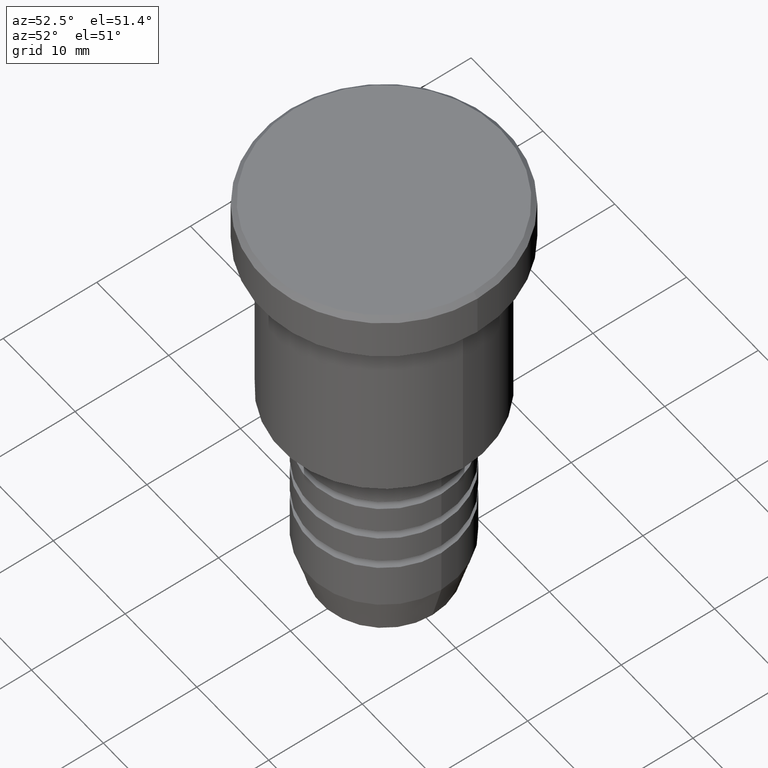
[diagram: clean part render]
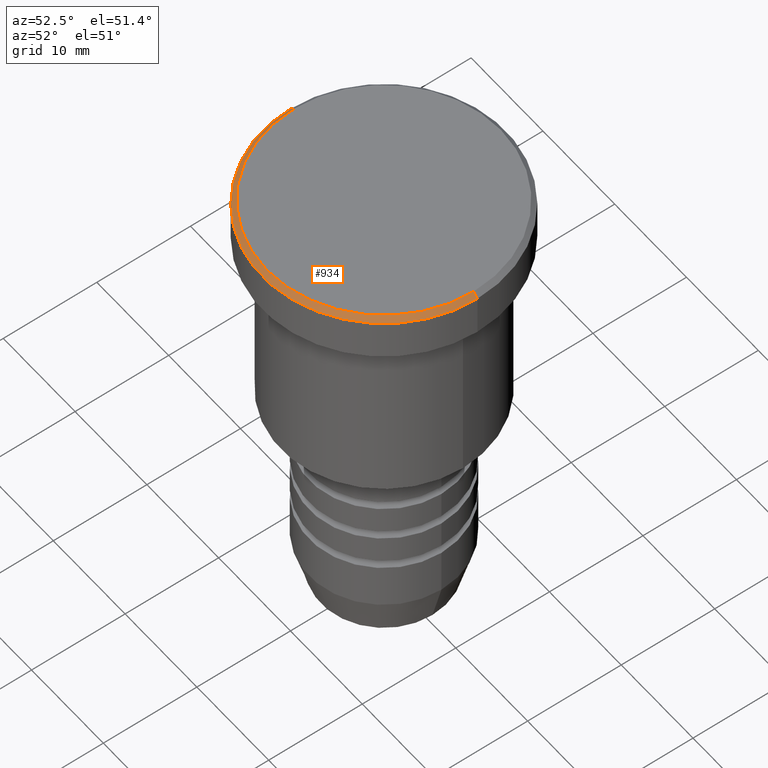
[diagram: same view with one face highlighted and labeled with its STEP entity id]
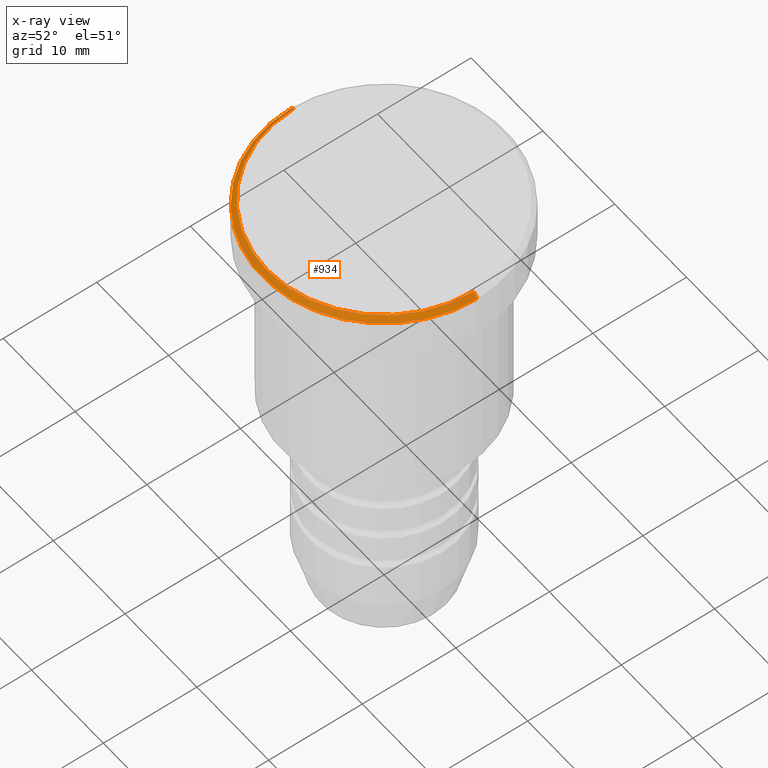
[diagram: x-ray of the same camera — body ghosted, the highlighted face saturated]
A machine part, auxiliary view. The second image highlights one B-rep face of the part: STEP entity #934.
The next image is the same camera in x-ray: the body ghosted, the highlighted face saturated — about 0% of this face is hidden behind the body in this view.
In plain terms, the highlighted conical surface has half-angle 45 deg.
Its self-contained STEP definition (entity closure, byte-faithful):
#182 = DIRECTION ( 'NONE',  ( 1.000000000000000000, 0.000000000000000000, 0.000000000000000000 ) ) ;
#217 = VERTEX_POINT ( 'NONE', #517 ) ;
#220 = DIRECTION ( 'NONE',  ( -0.7071067811865439090, 0.000000000000000000, -0.7071067811865512365 ) ) ;
#253 = DIRECTION ( 'NONE',  ( 0.000000000000000000, 0.000000000000000000, -1.000000000000000000 ) ) ;
#305 = ORIENTED_EDGE ( 'NONE', *, *, #820, .F. ) ;
#328 = CIRCLE ( 'NONE', #468, 13.00000000000000000 ) ;
#420 = CARTESIAN_POINT ( 'NONE',  ( 0.000000000000000000, 0.000000000000000000, 0.000000000000000000 ) ) ;
#422 = CARTESIAN_POINT ( 'NONE',  ( -12.50000000000000355, 0.000000000000000000, 0.000000000000000000 ) ) ;
#458 = ORIENTED_EDGE ( 'NONE', *, *, #951, .F. ) ;
#468 = AXIS2_PLACEMENT_3D ( 'NONE', #794, #253, #182 ) ;
#469 = CARTESIAN_POINT ( 'NONE',  ( 12.50000000000000355, 1.530808498934191916E-15, 0.000000000000000000 ) ) ;
#473 = DIRECTION ( 'NONE',  ( 0.7071067811865439090, 8.659560562354888485E-17, -0.7071067811865512365 ) ) ;
#493 = LINE ( 'NONE', #422, #808 ) ;
#505 = ORIENTED_EDGE ( 'NONE', *, *, #635, .F. ) ;
#509 = DIRECTION ( 'NONE',  ( 0.000000000000000000, 0.000000000000000000, -1.000000000000000000 ) ) ;
#517 = CARTESIAN_POINT ( 'NONE',  ( -13.00000000000000000, 1.592040838891559095E-15, -0.5000000000000004441 ) ) ;
#520 = DIRECTION ( 'NONE',  ( -1.000000000000000000, 0.000000000000000000, 0.000000000000000000 ) ) ;
#543 = CARTESIAN_POINT ( 'NONE',  ( 12.50000000000000355, 1.561424668912875506E-15, 0.000000000000000000 ) ) ;
#550 = CARTESIAN_POINT ( 'NONE',  ( 0.000000000000000000, 0.000000000000000000, 0.000000000000000000 ) ) ;
#568 = LINE ( 'NONE', #469, #890 ) ;
#616 = VERTEX_POINT ( 'NONE', #1015 ) ;
#635 = EDGE_CURVE ( 'NONE', #616, #758, #1112, .T. ) ;
#672 = DIRECTION ( 'NONE',  ( 1.000000000000000000, 0.000000000000000000, 0.000000000000000000 ) ) ;
#729 = VERTEX_POINT ( 'NONE', #815 ) ;
#754 = ORIENTED_EDGE ( 'NONE', *, *, #1030, .T. ) ;
#758 = VERTEX_POINT ( 'NONE', #543 ) ;
#794 = CARTESIAN_POINT ( 'NONE',  ( 0.000000000000000000, 0.000000000000000000, -0.5000000000000004441 ) ) ;
#799 = EDGE_LOOP ( 'NONE', ( #305, #505, #754, #458 ) ) ;
#808 = VECTOR ( 'NONE', #220, 999.9999999999998863 ) ;
#815 = CARTESIAN_POINT ( 'NONE',  ( 13.00000000000000000, 0.000000000000000000, -0.5000000000000004441 ) ) ;
#820 = EDGE_CURVE ( 'NONE', #758, #729, #568, .T. ) ;
#890 = VECTOR ( 'NONE', #473, 999.9999999999998863 ) ;
#934 = ADVANCED_FACE ( 'NONE', ( #1019 ), #1037, .T. ) ;
#944 = DIRECTION ( 'NONE',  ( -0.000000000000000000, -0.000000000000000000, 1.000000000000000000 ) ) ;
#951 = EDGE_CURVE ( 'NONE', #729, #217, #328, .T. ) ;
#1015 = CARTESIAN_POINT ( 'NONE',  ( -12.50000000000000355, 0.000000000000000000, 0.000000000000000000 ) ) ;
#1019 = FACE_OUTER_BOUND ( 'NONE', #799, .T. ) ;
#1022 = AXIS2_PLACEMENT_3D ( 'NONE', #420, #509, #520 ) ;
#1030 = EDGE_CURVE ( 'NONE', #616, #217, #493, .T. ) ;
#1037 = CONICAL_SURFACE ( 'NONE', #1022, 12.50000000000000355, 0.7853981633974430610 ) ;
#1098 = AXIS2_PLACEMENT_3D ( 'NONE', #550, #944, #672 ) ;
#1112 = CIRCLE ( 'NONE', #1098, 12.50000000000000355 ) ;